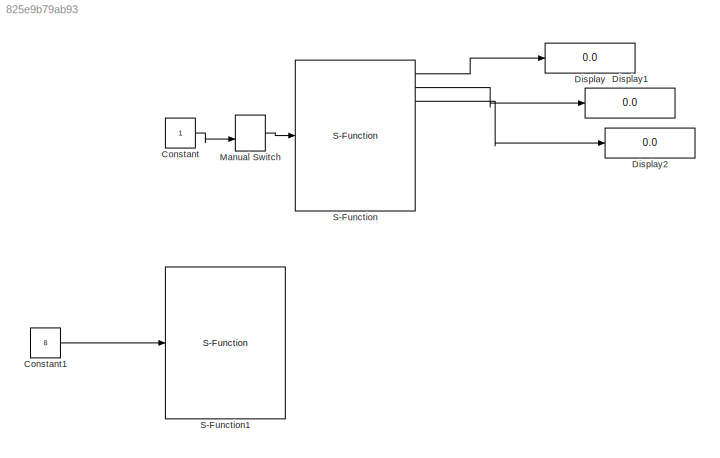
MODEL slx_825e9b79ab93
KIND model
CONFIG AbsTol = auto
CONFIG EnableMultiTasking = off
CONFIG FixedStep = 0.01
CONFIG MaxStep = auto
CONFIG MinStep = auto
CONFIG RelTol = 1e-3
CONFIG SampleTimeConstraint = Unconstrained
CONFIG Solver = ode5
CONFIG SolverName = ode5
CONFIG StartTime = 0.0
CONFIG StopTime = 100
BLOCK [Constant] Constant
  Commented = on
BLOCK [Constant] Constant1
  Value = 8
BLOCK [Display] Display
  Commented = on
  Decimation = 1
  Ports = [1]
BLOCK [Display] Display1
  Commented = on
  Decimation = 1
  Ports = [1]
BLOCK [Display] Display2
  Commented = on
  Decimation = 1
  Ports = [1]
BLOCK [ManualSwitch] Manual Switch
  Commented = on
  CurrentSetting = 0
BLOCK [S-Function] S-Function
  Commented = on
  EnableBusSupport = off
  FunctionName = ModbusRead
  Parameters = '127.0.0.1' 502
  Ports = [1, 10]
  SFcnIsStateOwnerBlock = off
  SFunctionDeploymentMode = off
BLOCK [S-Function] S-Function1
  EnableBusSupport = off
  FunctionName = ModbusWrite
  Parameters = '127.0.0.1' 502
  Ports = [1]
  SFcnIsStateOwnerBlock = off
  SFunctionDeploymentMode = off
LINE Constant1:1 -> S-Function1:1
LINE Constant:1 -> Manual Switch:2
LINE Manual Switch:1 -> S-Function:1
LINE S-Function:1 -> Display:1
LINE S-Function:2 -> Display1:1
LINE S-Function:3 -> Display2:1
